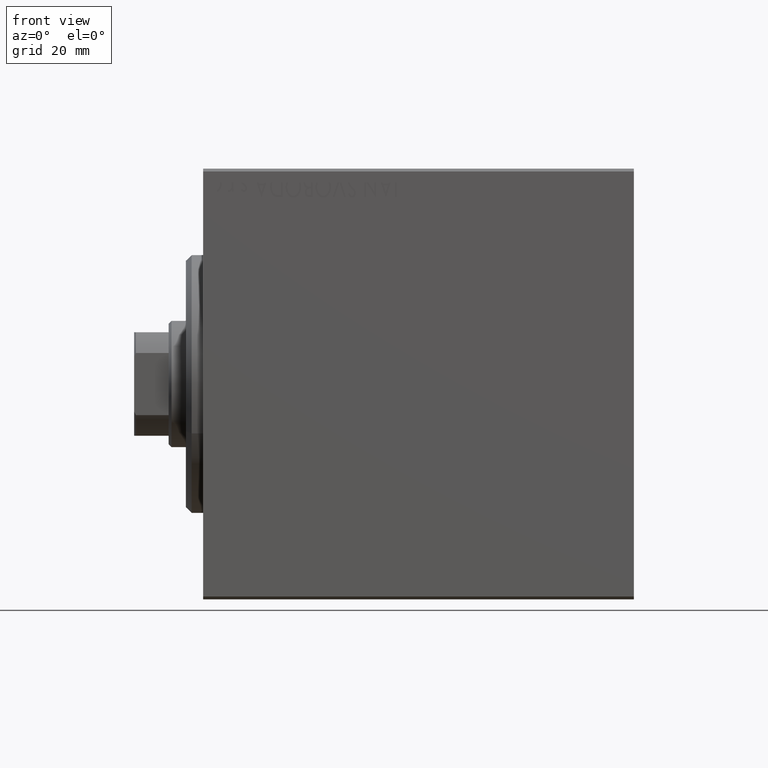
[diagram: clean part render]
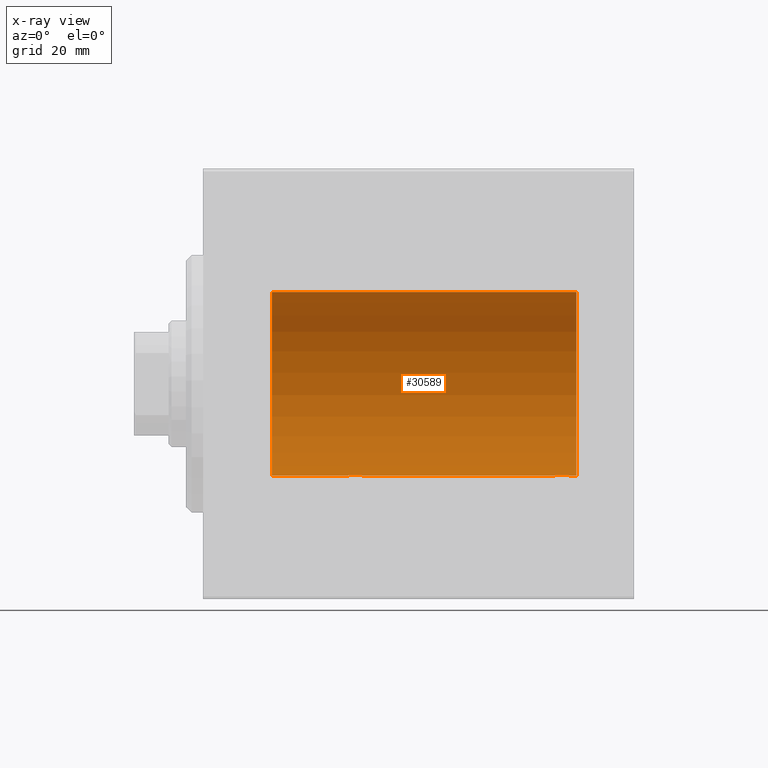
[diagram: x-ray — body ghosted, one internal face saturated and labeled with its STEP entity id]
A machine part, front view, then the same camera in x-ray: the body is ghosted and one INTERNAL B-rep face — a face not visible from any outside direction — is saturated and labeled: STEP entity #30589.
In plain terms, the highlighted cylindrical surface (partial cylindrical patch) has radius 16 mm, axis along (-1, -0, -0).
Its self-contained STEP definition (entity closure, byte-faithful):
#319 = CARTESIAN_POINT ( 'NONE',  ( 27.38617757057268420, 1.797743958659262731, -15.89876304682111652 ) ) ;
#336 = CARTESIAN_POINT ( 'NONE',  ( 64.39783726498897920, 0.6445079780200581032, -15.98747331501412816 ) ) ;
#551 = CARTESIAN_POINT ( 'NONE',  ( 60.50000000000000000, 0.1322838750249188400, -15.99999999999999645 ) ) ;
#775 = CARTESIAN_POINT ( 'NONE',  ( 64.50000000000000000, 1.959434851248285101E-15, -16.00000000000000000 ) ) ;
#993 = CARTESIAN_POINT ( 'NONE',  ( 64.09001528100125711, 1.220169175415124929, -15.95377581882983975 ) ) ;
#1070 = CARTESIAN_POINT ( 'NONE',  ( 65.00000000000000000, 1.959434878635765131E-15, -16.00000000000000000 ) ) ;
#1072 = DIRECTION ( 'NONE',  ( -1.000000000000000000, -0.000000000000000000, -0.000000000000000000 ) ) ;
#1206 = CARTESIAN_POINT ( 'NONE',  ( 60.99389287531753467, 1.322357532253821688, -15.94553003295876970 ) ) ;
#1485 = VERTEX_POINT ( 'NONE', #29983 ) ;
#1739 = CARTESIAN_POINT ( 'NONE',  ( 65.00000000000000000, 0.000000000000000000, 16.00000000000000000 ) ) ;
#2782 = CARTESIAN_POINT ( 'NONE',  ( 24.50000000000000000, 0.1322838750249235862, -16.00000000000000355 ) ) ;
#2861 = CARTESIAN_POINT ( 'NONE',  ( 28.49999999999999645, 1.959434851238818770E-15, -16.00000000000000000 ) ) ;
#2942 = CARTESIAN_POINT ( 'NONE',  ( 24.50000000000000000, -2.103178745110437193E-15, -16.00000000000000000 ) ) ;
#3224 = CARTESIAN_POINT ( 'NONE',  ( 25.97468243540595978, 1.947280337074166923, -15.88137861827786779 ) ) ;
#3365 = CARTESIAN_POINT ( 'NONE',  ( 60.49999999999999289, -9.573340169032840992E-15, -16.00000000000000000 ) ) ;
#3444 = CARTESIAN_POINT ( 'NONE',  ( 24.99389287531754178, 1.322357532253823909, -15.94553003295877325 ) ) ;
#3664 = CARTESIAN_POINT ( 'NONE',  ( 28.49999999999999645, 0.1305944228192321699, -16.00000000000000000 ) ) ;
#3684 = CARTESIAN_POINT ( 'NONE',  ( 63.82075824828930877, 1.507649250492136606, -15.92908549642226745 ) ) ;
#4429 = AXIS2_PLACEMENT_3D ( 'NONE', #5753, #42014, #11553 ) ;
#5753 = CARTESIAN_POINT ( 'NONE',  ( 65.00000000000000000, 0.000000000000000000, 0.000000000000000000 ) ) ;
#6333 = CARTESIAN_POINT ( 'NONE',  ( 25.27043888260214999, 1.598790766515152173, -15.92099550861380486 ) ) ;
#6554 = CARTESIAN_POINT ( 'NONE',  ( 24.56388673317935556, 0.5181437283162043661, -15.99211983514074653 ) ) ;
#6648 = CARTESIAN_POINT ( 'NONE',  ( 11.99999999999999645, 0.000000000000000000, 0.000000000000000000 ) ) ;
#6998 = CARTESIAN_POINT ( 'NONE',  ( 28.23482670674955486, 1.003662148334367954, -15.96885838080211073 ) ) ;
#7201 = ORIENTED_EDGE ( 'NONE', *, *, #24248, .T. ) ;
#7231 = CARTESIAN_POINT ( 'NONE',  ( 63.01913097710111344, 1.935876924222080797, -15.88247600692093187 ) ) ;
#7667 = CARTESIAN_POINT ( 'NONE',  ( 60.49999999999999289, -9.573340169032840992E-15, -16.00000000000000000 ) ) ;
#9462 = CARTESIAN_POINT ( 'NONE',  ( 28.39783726498895433, 0.6445079780200565489, -15.98747331501412106 ) ) ;
#9681 = CARTESIAN_POINT ( 'NONE',  ( 27.01913097710113121, 1.935876924222081907, -15.88247600692093187 ) ) ;
#9728 = VECTOR ( 'NONE', #1072, 1000.000000000000000 ) ;
#9902 = CARTESIAN_POINT ( 'NONE',  ( 27.50311247035038775, 1.735145127817748323, -15.90580292899658410 ) ) ;
#9905 = VERTEX_POINT ( 'NONE', #21280 ) ;
#10124 = CARTESIAN_POINT ( 'NONE',  ( 28.43569052926130070, 0.5198215460038754232, -15.99206840425679310 ) ) ;
#10798 = CARTESIAN_POINT ( 'NONE',  ( 60.76431901501735666, 1.002241074716276437, -15.96895041604536125 ) ) ;
#11447 = CARTESIAN_POINT ( 'NONE',  ( 62.62985308350498315, 2.000047931387145983, -15.87450182760079898 ) ) ;
#11553 = DIRECTION ( 'NONE',  ( 0.000000000000000000, 0.000000000000000000, 1.000000000000000000 ) ) ;
#12054 = CARTESIAN_POINT ( 'NONE',  ( 65.00000000000000000, 0.000000000000000000, 0.000000000000000000 ) ) ;
#13460 = CARTESIAN_POINT ( 'NONE',  ( 28.48690924832125759, 0.2632563459770846381, -15.99834873924246814 ) ) ;
#13676 = CARTESIAN_POINT ( 'NONE',  ( 27.71967657442277400, 1.590393755196007008, -15.92092783521424337 ) ) ;
#13796 = DIRECTION ( 'NONE',  ( -1.000000000000000000, -0.000000000000000000, -0.000000000000000000 ) ) ;
#13894 = CARTESIAN_POINT ( 'NONE',  ( 24.50000000000000000, -2.103178745110437193E-15, -16.00000000000000000 ) ) ;
#13981 = DIRECTION ( 'NONE',  ( -1.000000000000000000, 0.000000000000000000, 0.000000000000000000 ) ) ;
#14129 = CARTESIAN_POINT ( 'NONE',  ( 61.97468243540594557, 1.947280337074165368, -15.88137861827787134 ) ) ;
#14808 = VERTEX_POINT ( 'NONE', #22738 ) ;
#16601 = CIRCLE ( 'NONE', #19451, 16.00000000000000000 ) ;
#16797 = CARTESIAN_POINT ( 'NONE',  ( 26.76251583007899271, 1.987008272775795614, -15.87616016863256263 ) ) ;
#17016 = CARTESIAN_POINT ( 'NONE',  ( 27.82075824828932653, 1.507649250492136606, -15.92908549642227101 ) ) ;
#17213 = VERTEX_POINT ( 'NONE', #1739 ) ;
#17251 = CARTESIAN_POINT ( 'NONE',  ( 64.00737160312429808, 1.321075116345888256, -15.94564302722882232 ) ) ;
#17901 = CARTESIAN_POINT ( 'NONE',  ( 63.71967657442274913, 1.590393755196015002, -15.92092783521423272 ) ) ;
#18120 = ORIENTED_EDGE ( 'NONE', *, *, #22803, .T. ) ;
#18126 = ORIENTED_EDGE ( 'NONE', *, *, #26855, .T. ) ;
#18533 = ORIENTED_EDGE ( 'NONE', *, *, #27464, .F. ) ;
#19451 = AXIS2_PLACEMENT_3D ( 'NONE', #6648, #13981, #23987 ) ;
#19515 = EDGE_LOOP ( 'NONE', ( #35519, #20427, #41548, #18120, #43730, #7201, #18533, #18126 ) ) ;
#19830 = EDGE_CURVE ( 'NONE', #17213, #26847, #25745, .T. ) ;
#20124 = CARTESIAN_POINT ( 'NONE',  ( 24.76431901501738864, 1.002241074716281544, -15.96895041604536125 ) ) ;
#20427 = ORIENTED_EDGE ( 'NONE', *, *, #19830, .F. ) ;
#20579 = CARTESIAN_POINT ( 'NONE',  ( 62.23808537237743366, 1.999903730784159173, -15.87451999516785861 ) ) ;
#20798 = CARTESIAN_POINT ( 'NONE',  ( 64.49999999999997158, 0.1305944228192322254, -15.99999999999999289 ) ) ;
#20881 = VERTEX_POINT ( 'NONE', #2861 ) ;
#21003 = CARTESIAN_POINT ( 'NONE',  ( 63.14386968033014114, 1.898058445420889750, -15.88709929148890510 ) ) ;
#21280 = CARTESIAN_POINT ( 'NONE',  ( 64.50000000000000000, 1.959434851248285101E-15, -16.00000000000000000 ) ) ;
#21442 = CARTESIAN_POINT ( 'NONE',  ( 64.29749928605036757, 0.8866640484200128958, -15.97587307151817804 ) ) ;
#21738 = LINE ( 'NONE', #34666, #9728 ) ;
#22272 = CYLINDRICAL_SURFACE ( 'NONE', #39515, 16.00000000000000000 ) ;
#22738 = CARTESIAN_POINT ( 'NONE',  ( 11.99999999999999645, 1.959434878635765131E-15, -16.00000000000000000 ) ) ;
#22803 = EDGE_CURVE ( 'NONE', #1485, #14808, #16601, .T. ) ;
#23266 = VERTEX_POINT ( 'NONE', #2942 ) ;
#23460 = CARTESIAN_POINT ( 'NONE',  ( 24.70286585251780664, 0.8874076679346751817, -15.97583181162461408 ) ) ;
#23987 = DIRECTION ( 'NONE',  ( 0.000000000000000000, 0.000000000000000000, 1.000000000000000000 ) ) ;
#24134 = CARTESIAN_POINT ( 'NONE',  ( 63.50311247035038065, 1.735145127817755650, -15.90580292899658055 ) ) ;
#24248 = EDGE_CURVE ( 'NONE', #23266, #20881, #42479, .T. ) ;
#24351 = CARTESIAN_POINT ( 'NONE',  ( 60.90948495147899422, 1.219564485341763760, -15.95382484008323054 ) ) ;
#24789 = CARTESIAN_POINT ( 'NONE',  ( 63.38617757057270552, 1.797743958659260510, -15.89876304682112362 ) ) ;
#25745 = CIRCLE ( 'NONE', #4429, 16.00000000000000000 ) ;
#26143 = VECTOR ( 'NONE', #13796, 1000.000000000000000 ) ;
#26584 = CARTESIAN_POINT ( 'NONE',  ( 26.62985308350499025, 2.000047931387146871, -15.87450182760080253 ) ) ;
#26847 = VERTEX_POINT ( 'NONE', #30808 ) ;
#26855 = EDGE_CURVE ( 'NONE', #32364, #9905, #37013, .T. ) ;
#27022 = CARTESIAN_POINT ( 'NONE',  ( 28.00737160312429452, 1.321075116345887368, -15.94564302722882587 ) ) ;
#27148 = LINE ( 'NONE', #41373, #32327 ) ;
#27242 = CARTESIAN_POINT ( 'NONE',  ( 28.49999999999999645, 1.959434851238818770E-15, -16.00000000000000000 ) ) ;
#27464 = EDGE_CURVE ( 'NONE', #32364, #20881, #27148, .T. ) ;
#27693 = CARTESIAN_POINT ( 'NONE',  ( 60.70286585251778178, 0.8874076679346716290, -15.97583181162461052 ) ) ;
#28287 = FACE_OUTER_BOUND ( 'NONE', #19515, .T. ) ;
#28639 = DIRECTION ( 'NONE',  ( -1.000000000000000000, -0.000000000000000000, -0.000000000000000000 ) ) ;
#29983 = CARTESIAN_POINT ( 'NONE',  ( 11.99999999999999645, 0.000000000000000000, 16.00000000000000000 ) ) ;
#30141 = CARTESIAN_POINT ( 'NONE',  ( 25.49340818440419199, 1.747750603376302614, -15.90457341008072412 ) ) ;
#30357 = CARTESIAN_POINT ( 'NONE',  ( 26.23808537237744787, 1.999903730784159617, -15.87451999516785861 ) ) ;
#30589 = ADVANCED_FACE ( 'NONE', ( #28287 ), #22272, .F. ) ;
#30808 = CARTESIAN_POINT ( 'NONE',  ( 65.00000000000000000, 1.959434878635765131E-15, -16.00000000000000000 ) ) ;
#31026 = VECTOR ( 'NONE', #28639, 1000.000000000000000 ) ;
#31246 = CARTESIAN_POINT ( 'NONE',  ( 62.76251583007899626, 1.987008272775793838, -15.87616016863256263 ) ) ;
#31345 = CARTESIAN_POINT ( 'NONE',  ( 65.00000000000000000, 1.959434878635765131E-15, -16.00000000000000000 ) ) ;
#31466 = CARTESIAN_POINT ( 'NONE',  ( 60.60241129944407845, 0.6452446332038094257, -15.98744362947834929 ) ) ;
#31544 = LINE ( 'NONE', #1070, #31026 ) ;
#31678 = CARTESIAN_POINT ( 'NONE',  ( 60.51299475991586263, 0.2623312429553253389, -15.99836091803360283 ) ) ;
#32327 = VECTOR ( 'NONE', #37601, 1000.000000000000000 ) ;
#32364 = VERTEX_POINT ( 'NONE', #3365 ) ;
#34135 = CARTESIAN_POINT ( 'NONE',  ( 24.60241129944407135, 0.6452446332038127563, -15.98744362947834574 ) ) ;
#34579 = CARTESIAN_POINT ( 'NONE',  ( 64.23482670674952999, 1.003662148334373283, -15.96885838080210362 ) ) ;
#34666 = CARTESIAN_POINT ( 'NONE',  ( 65.00000000000000000, 0.000000000000000000, 16.00000000000000000 ) ) ;
#35024 = CARTESIAN_POINT ( 'NONE',  ( 64.48690924832126825, 0.2632563459770859149, -15.99834873924246459 ) ) ;
#35396 = DIRECTION ( 'NONE',  ( 0.000000000000000000, 0.000000000000000000, 1.000000000000000000 ) ) ;
#35519 = ORIENTED_EDGE ( 'NONE', *, *, #39739, .F. ) ;
#36309 = EDGE_CURVE ( 'NONE', #23266, #14808, #31544, .T. ) ;
#37013 = B_SPLINE_CURVE_WITH_KNOTS ( 'NONE', 3,
 ( #7667, #551, #31678, #38134, #31466, #27693, #10798, #24351, #1206, #41692, #41914, #14129, #20579, #11447, #31246, #7231, #21003, #24789, #24134, #17901, #3684, #17251, #993, #34579, #21442, #336, #41046, #35024, #20798, #775 ),
 .UNSPECIFIED., .F., .F.,
 ( 4, 2, 2, 2, 2, 2, 2, 2, 2, 2, 2, 2, 2, 2, 4 ),
 ( 1.991932713717143819E-18, 0.0003911894522871088727, 0.0007823789045742156854, 0.001173568356861322227, 0.001564757809148428769, 0.002347136713722657465, 0.003129515618296885727, 0.003520705070584010266, 0.003911894522871134372, 0.004303083975158258911, 0.004694273427445384318, 0.005085462879732508858, 0.005476652332019634264, 0.005867841784306758804, 0.006259031236593884211 ),
 .UNSPECIFIED. ) ;
#37472 = CARTESIAN_POINT ( 'NONE',  ( 28.29749928605040665, 0.8866640484200122296, -15.97587307151818514 ) ) ;
#37601 = DIRECTION ( 'NONE',  ( -1.000000000000000000, -0.000000000000000000, -0.000000000000000000 ) ) ;
#37778 = EDGE_CURVE ( 'NONE', #17213, #1485, #21738, .T. ) ;
#38134 = CARTESIAN_POINT ( 'NONE',  ( 60.56388673317934490, 0.5181437283162021457, -15.99211983514074653 ) ) ;
#39515 = AXIS2_PLACEMENT_3D ( 'NONE', #12054, #42517, #35396 ) ;
#39739 = EDGE_CURVE ( 'NONE', #26847, #9905, #40926, .T. ) ;
#40145 = CARTESIAN_POINT ( 'NONE',  ( 24.51299475991587329, 0.2623312429553279479, -15.99836091803360105 ) ) ;
#40809 = CARTESIAN_POINT ( 'NONE',  ( 27.14386968033013758, 1.898058445420891305, -15.88709929148890510 ) ) ;
#40926 = LINE ( 'NONE', #31345, #26143 ) ;
#41046 = CARTESIAN_POINT ( 'NONE',  ( 64.43569052926127938, 0.5198215460038770885, -15.99206840425679310 ) ) ;
#41373 = CARTESIAN_POINT ( 'NONE',  ( 65.00000000000000000, 1.959434878635765131E-15, -16.00000000000000000 ) ) ;
#41548 = ORIENTED_EDGE ( 'NONE', *, *, #37778, .T. ) ;
#41692 = CARTESIAN_POINT ( 'NONE',  ( 61.27043888260216420, 1.598790766515151063, -15.92099550861380841 ) ) ;
#41914 = CARTESIAN_POINT ( 'NONE',  ( 61.49340818440418843, 1.747750603376301060, -15.90457341008072767 ) ) ;
#42014 = DIRECTION ( 'NONE',  ( -1.000000000000000000, 0.000000000000000000, 0.000000000000000000 ) ) ;
#42479 = B_SPLINE_CURVE_WITH_KNOTS ( 'NONE', 3,
 ( #13894, #2782, #40145, #6554, #34135, #23460, #20124, #43484, #3444, #6333, #30141, #3224, #30357, #26584, #16797, #9681, #40809, #319, #9902, #13676, #17016, #27022, #43919, #6998, #37472, #9462, #10124, #13460, #3664, #27242 ),
 .UNSPECIFIED., .F., .F.,
 ( 4, 2, 2, 2, 2, 2, 2, 2, 2, 2, 2, 2, 2, 2, 4 ),
 ( 6.061338176617876434E-19, 0.0003911894522871146732, 0.0007823789045742288043, 0.001173568356861343261, 0.001564757809148457609, 0.002347136713722686955, 0.003129515618296916518, 0.003520705070584036721, 0.003911894522871156923, 0.004303083975158277993, 0.004694273427445398196, 0.005085462879732518399, 0.005476652332019638601, 0.005867841784306759671, 0.006259031236593879007 ),
 .UNSPECIFIED. ) ;
#42517 = DIRECTION ( 'NONE',  ( -1.000000000000000000, -0.000000000000000000, -0.000000000000000000 ) ) ;
#43484 = CARTESIAN_POINT ( 'NONE',  ( 24.90948495147901554, 1.219564485341768645, -15.95382484008323409 ) ) ;
#43730 = ORIENTED_EDGE ( 'NONE', *, *, #36309, .F. ) ;
#43919 = CARTESIAN_POINT ( 'NONE',  ( 28.09001528100123224, 1.220169175415120932, -15.95377581882983797 ) ) ;